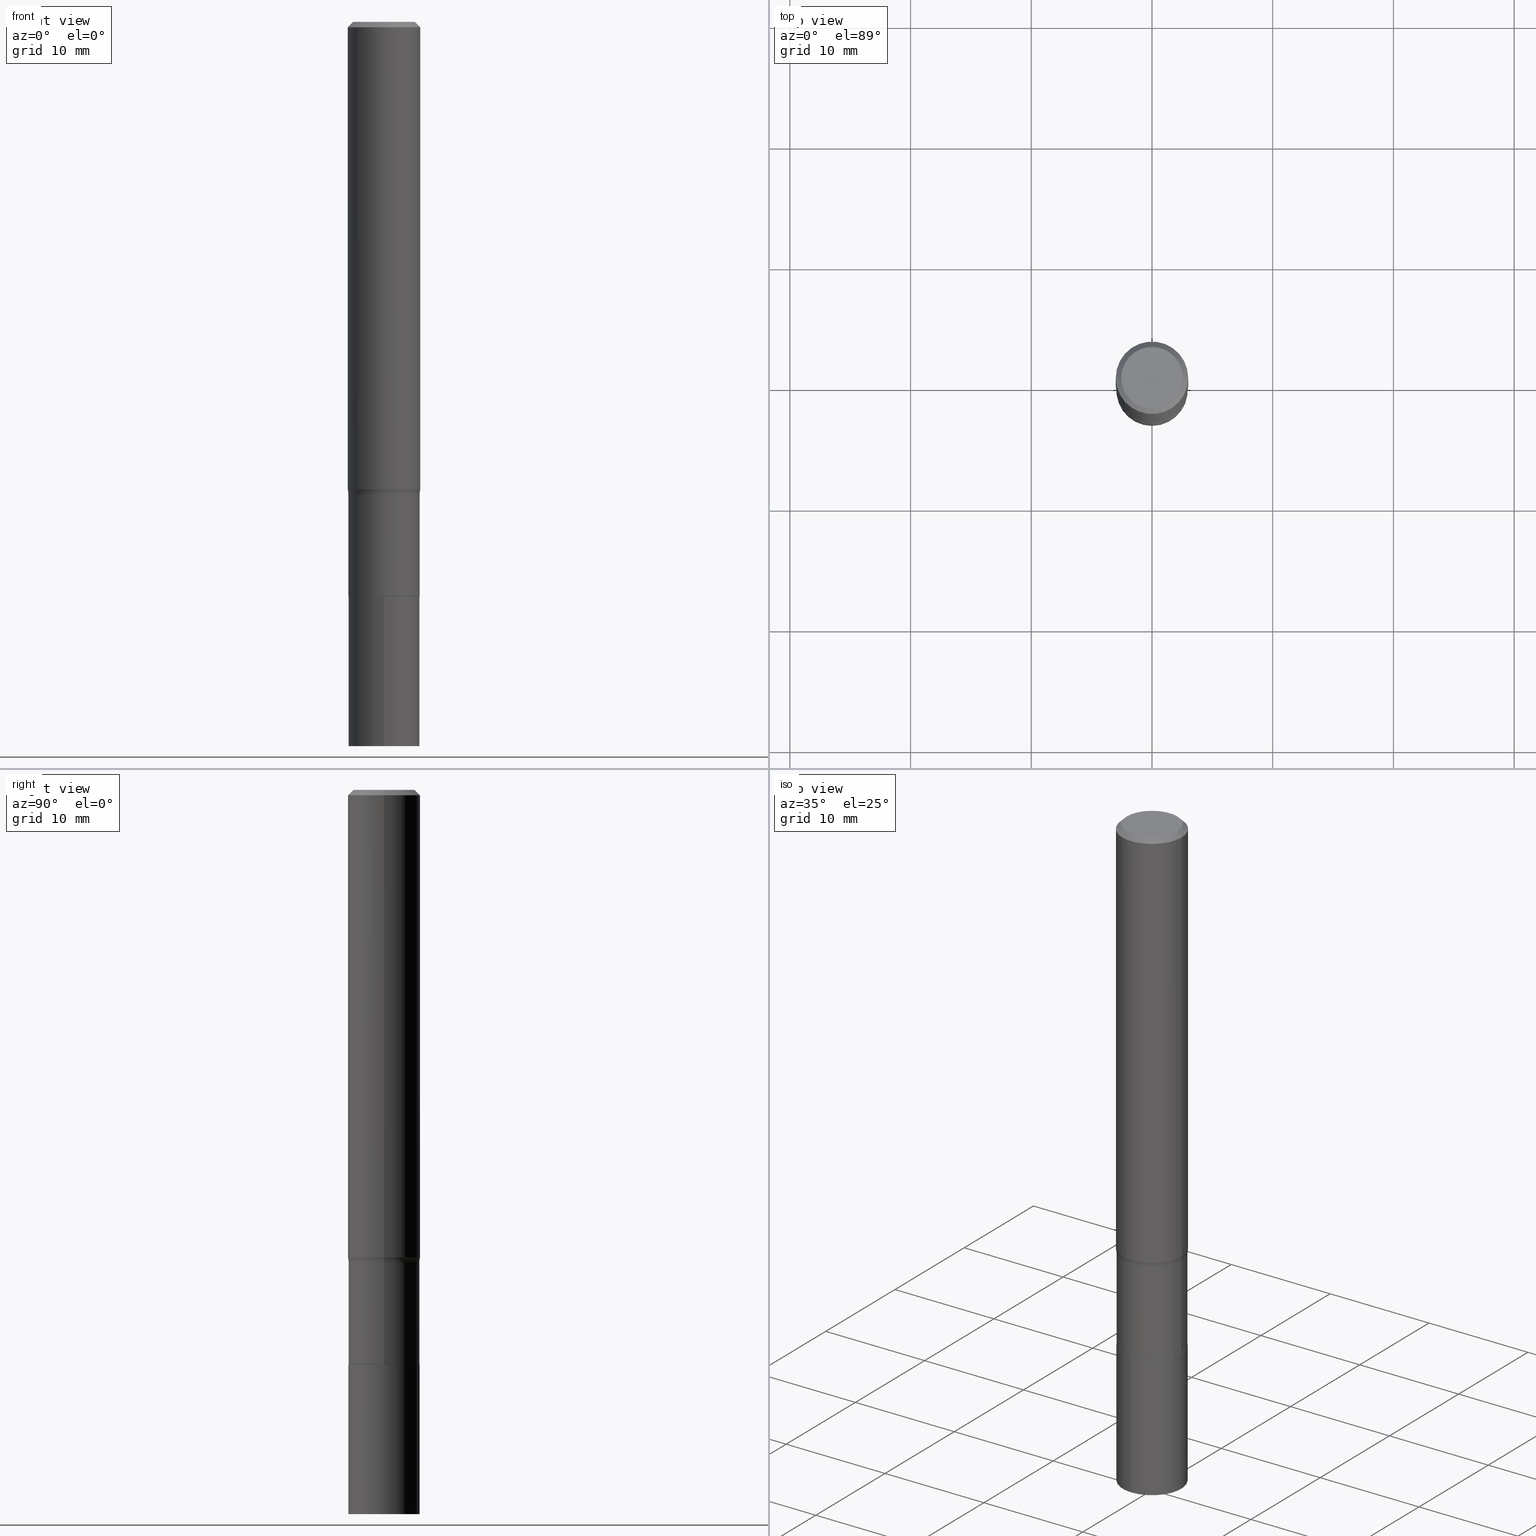
[diagram: canonical four-view strip — front | top / right | iso, engineering-drawing reading convention]
A machine part, canonical four-view strip (front | top / right | iso — engineering-drawing reading convention). The complete STEP part file that produces these views, byte-faithful:
ISO-10303-21;
HEADER;
FILE_DESCRIPTION (( 'STEP AP203' ),
    '1' );
FILE_NAME ('67104.STEP',
    '2024-04-19T15:53:28',
    ( '' ),
    ( '' ),
    'SwSTEP 2.0',
    'SolidWorks 2023',
    '' );
FILE_SCHEMA (( 'CONFIG_CONTROL_DESIGN' ));
ENDSEC;

DATA;
#1 = DIRECTION ( 'NONE',  ( -2.445468806185136877E-29, 3.491481338843145188E-15, 1.000000000000000000 ) ) ;
#2 = CARTESIAN_POINT ( 'NONE',  ( 0.1180999999999999966, -8.720764054544246253E-16, -0.01771500000000011954 ) ) ;
#3 = DIRECTION ( 'NONE',  ( -2.445468806185136597E-29, 3.491481338843145583E-15, 1.000000000000000000 ) ) ;
#4 = LOCAL_TIME ( 11, 53, 28.00000000000000000, #277 ) ;
#5 = AXIS2_PLACEMENT_3D ( 'NONE', #256, #399, #326 ) ;
#6 = CARTESIAN_POINT ( 'NONE',  ( -8.110711150132139920E-16, -0.1161500000000065397, -1.874200000000000088 ) ) ;
#7 = PLANE ( 'NONE',  #48 ) ;
#8 = CC_DESIGN_DATE_AND_TIME_ASSIGNMENT ( #12, #376, ( #252 ) ) ;
#9 = LOCAL_TIME ( 11, 53, 28.00000000000000000, #347 ) ;
#10 = AXIS2_PLACEMENT_3D ( 'NONE', #339, #189, #403 ) ;
#11 = ORIENTED_EDGE ( 'NONE', *, *, #56, .T. ) ;
#12 = DATE_AND_TIME ( #235, #430 ) ;
#13 = ORIENTED_EDGE ( 'NONE', *, *, #203, .T. ) ;
#14 = DIRECTION ( 'NONE',  ( 0.000000000000000000, 0.000000000000000000, 1.000000000000000000 ) ) ;
#15 = ORIENTED_EDGE ( 'NONE', *, *, #375, .F. ) ;
#16 =( GEOMETRIC_REPRESENTATION_CONTEXT ( 3 ) GLOBAL_UNCERTAINTY_ASSIGNED_CONTEXT ( ( #38 ) ) GLOBAL_UNIT_ASSIGNED_CONTEXT ( ( #122, #300, #80 ) ) REPRESENTATION_CONTEXT ( 'NONE', 'WORKASPACE' ) );
#17 = CIRCLE ( 'NONE', #358, 0.1161499999999999894 ) ;
#18 = EDGE_CURVE ( 'NONE', #453, #280, #26, .T. ) ;
#19 = AXIS2_PLACEMENT_3D ( 'NONE', #405, #118, #363 ) ;
#20 = PERSON_AND_ORGANIZATION ( #338, #124 ) ;
#21 = ORIENTED_EDGE ( 'NONE', *, *, #226, .F. ) ;
#22 = FACE_OUTER_BOUND ( 'NONE', #133, .T. ) ;
#23 = ORIENTED_EDGE ( 'NONE', *, *, #423, .F. ) ;
#24 = CARTESIAN_POINT ( 'NONE',  ( 4.583297636552184206E-29, -6.543734325259825090E-15, -1.874200000000000532 ) ) ;
#25 = ORIENTED_EDGE ( 'NONE', *, *, #259, .T. ) ;
#26 = CIRCLE ( 'NONE', #218, 0.1161499999999999894 ) ;
#27 = DIRECTION ( 'NONE',  ( 7.105427357601001859E-15, 1.000000000000000000, -3.491481338843145583E-15 ) ) ;
#28 = VERTEX_POINT ( 'NONE', #288 ) ;
#29 = CC_DESIGN_PERSON_AND_ORGANIZATION_ASSIGNMENT ( #162, #234, ( #114 ) ) ;
#30 = DIRECTION ( 'NONE',  ( 1.000000000000000000, -6.982962677686259611E-15, 0.000000000000000000 ) ) ;
#31 = DATE_AND_TIME ( #459, #435 ) ;
#32 = CARTESIAN_POINT ( 'NONE',  ( 8.252953875854079607E-16, 0.1161499999999917598, -2.362200000000000966 ) ) ;
#33 = DIRECTION ( 'NONE',  ( -2.445468806185136597E-29, 3.491481338843145583E-15, 1.000000000000000000 ) ) ;
#34 = ADVANCED_FACE ( 'NONE', ( #68 ), #371, .T. ) ;
#35 = DIRECTION ( 'NONE',  ( -2.445468806185136597E-29, 3.491481338843145583E-15, 1.000000000000000000 ) ) ;
#36 = AXIS2_PLACEMENT_3D ( 'NONE', #357, #27, #428 ) ;
#37 = ORIENTED_EDGE ( 'NONE', *, *, #264, .F. ) ;
#38 = UNCERTAINTY_MEASURE_WITH_UNIT (LENGTH_MEASURE( 1.000000000000000082E-05 ), #122, 'distance_accuracy_value', 'NONE');
#39 = DIRECTION ( 'NONE',  ( 1.000000000000000000, -6.982962677686266711E-15, 4.875668750515089058E-29 ) ) ;
#40 = CARTESIAN_POINT ( 'NONE',  ( -0.1003849999999999465, 7.319105043583382745E-16, -3.278471329827902485E-17 ) ) ;
#41 = CARTESIAN_POINT ( 'NONE',  ( 0.1180999999999999966, -8.865394841523548556E-16, -0.01771500000000011954 ) ) ;
#42 = CIRCLE ( 'NONE', #5, 0.1161500000000000032 ) ;
#43 = EDGE_CURVE ( 'NONE', #421, #149, #199, .T. ) ;
#44 = ADVANCED_FACE ( 'NONE', ( #391 ), #108, .F. ) ;
#45 = DATE_AND_TIME ( #126, #4 ) ;
#46 = VECTOR ( 'NONE', #1, 39.37007874015748143 ) ;
#47 = ORIENTED_EDGE ( 'NONE', *, *, #164, .F. ) ;
#48 = AXIS2_PLACEMENT_3D ( 'NONE', #384, #413, #209 ) ;
#49 = DIRECTION ( 'NONE',  ( -2.445468806185136877E-29, 3.491481338843145188E-15, 1.000000000000000000 ) ) ;
#50 = EDGE_LOOP ( 'NONE', ( #242, #414, #317, #135 ) ) ;
#51 = MANIFOLD_SOLID_BREP ( 'Body-Move/Copy2[1]', #225 ) ;
#52 = VERTEX_POINT ( 'NONE', #63 ) ;
#53 = EDGE_CURVE ( 'NONE', #139, #360, #365, .T. ) ;
#54 = DATE_AND_TIME ( #171, #216 ) ;
#55 = EDGE_LOOP ( 'NONE', ( #21, #13, #411, #195 ) ) ;
#56 = EDGE_CURVE ( 'NONE', #447, #353, #42, .T. ) ;
#57 = AXIS2_PLACEMENT_3D ( 'NONE', #148, #257, #214 ) ;
#58 = FACE_OUTER_BOUND ( 'NONE', #385, .T. ) ;
#59 = VERTEX_POINT ( 'NONE', #177 ) ;
#60 = CARTESIAN_POINT ( 'NONE',  ( 0.000000000000000000, 0.000000000000000000, 0.000000000000000000 ) ) ;
#61 = ADVANCED_FACE ( 'NONE', ( #293 ), #437, .T. ) ;
#62 = DIRECTION ( 'NONE',  ( -2.477847829518707564E-29, 3.445112734529912251E-15, 1.000000000000000000 ) ) ;
#63 = CARTESIAN_POINT ( 'NONE',  ( 0.1156500000000000028, -7.351313958934242618E-15, -1.874200000000000532 ) ) ;
#64 = CC_DESIGN_APPROVAL ( #176, ( #191 ) ) ;
#65 = APPROVAL_ROLE ( '' ) ;
#66 = VECTOR ( 'NONE', #322, 39.37007874015748143 ) ;
#67 = DIRECTION ( 'NONE',  ( 1.000000000000000000, -6.982962677686266711E-15, 4.875668750515089058E-29 ) ) ;
#68 = FACE_OUTER_BOUND ( 'NONE', #129, .T. ) ;
#69 = DIRECTION ( 'NONE',  ( -6.982962677686265922E-15, -1.000000000000000000, 2.351999994545211393E-15 ) ) ;
#70 = CARTESIAN_POINT ( 'NONE',  ( 5.792487377357314585E-29, -8.224949339710423941E-15, -2.362200000000000966 ) ) ;
#71 = LINE ( 'NONE', #354, #320 ) ;
#72 = DIRECTION ( 'NONE',  ( -2.445468806185136597E-29, 3.491481338843145583E-15, 1.000000000000000000 ) ) ;
#73 = CARTESIAN_POINT ( 'NONE',  ( 4.583297636552184206E-29, -6.543734325259825090E-15, -1.874200000000000532 ) ) ;
#74 = DIRECTION ( 'NONE',  ( 2.445468806185136597E-29, -3.491481338843145583E-15, -1.000000000000000000 ) ) ;
#75 = ADVANCED_FACE ( 'NONE', ( #101 ), #340, .T. ) ;
#76 = CARTESIAN_POINT ( 'NONE',  ( 3.771891086659955739E-29, -5.385260817031669568E-15, -1.542400000000000437 ) ) ;
#77 = LENGTH_MEASURE_WITH_UNIT ( LENGTH_MEASURE( 0.02539999999999999897 ), #158 );
#78 = APPROVAL ( #166, 'UNSPECIFIED' ) ;
#79 = DIRECTION ( 'NONE',  ( -0.7071067811865467956, 2.468850131082249172E-15, -0.7071067811865482389 ) ) ;
#80 =( NAMED_UNIT ( * ) SI_UNIT ( $, .STERADIAN. ) SOLID_ANGLE_UNIT ( ) );
#81 = TOROIDAL_SURFACE ( 'NONE', #352, 0.1961499999999999633, 0.08000000000000000167 ) ;
#82 = MECHANICAL_CONTEXT ( 'NONE', #418, 'mechanical' ) ;
#83 = ADVANCED_FACE ( 'NONE', ( #269 ), #298, .T. ) ;
#84 = APPLICATION_PROTOCOL_DEFINITION ( 'international standard', 'config_control_design', 1994, #197 ) ;
#85 = ORIENTED_EDGE ( 'NONE', *, *, #43, .F. ) ;
#86 = PERSON_AND_ORGANIZATION ( #338, #124 ) ;
#87 = AXIS2_PLACEMENT_3D ( 'NONE', #73, #3, #439 ) ;
#88 = LINE ( 'NONE', #205, #98 ) ;
#89 = ORIENTED_EDGE ( 'NONE', *, *, #292, .T. ) ;
#90 = CIRCLE ( 'NONE', #57, 0.1161499999999999894 ) ;
#91 = CARTESIAN_POINT ( 'NONE',  ( 0.000000000000000000, 0.000000000000000000, 0.000000000000000000 ) ) ;
#92 = EDGE_CURVE ( 'NONE', #59, #186, #433, .T. ) ;
#93 = ORIENTED_EDGE ( 'NONE', *, *, #188, .F. ) ;
#94 = PERSON_AND_ORGANIZATION ( #338, #124 ) ;
#95 = CYLINDRICAL_SURFACE ( 'NONE', #107, 0.1181000000000001077 ) ;
#96 = VERTEX_POINT ( 'NONE', #440 ) ;
#97 = ORIENTED_EDGE ( 'NONE', *, *, #368, .F. ) ;
#98 = VECTOR ( 'NONE', #238, 39.37007874015748143 ) ;
#99 = SHAPE_DEFINITION_REPRESENTATION ( #327, #324 ) ;
#100 = CARTESIAN_POINT ( 'NONE',  ( 4.583297636552184206E-29, -6.543734325259825090E-15, -1.874200000000000532 ) ) ;
#101 = FACE_OUTER_BOUND ( 'NONE', #217, .T. ) ;
#102 = FACE_OUTER_BOUND ( 'NONE', #145, .T. ) ;
#103 = ORIENTED_EDGE ( 'NONE', *, *, #379, .F. ) ;
#104 = DIRECTION ( 'NONE',  ( -2.445468806185136597E-29, 3.491481338843145583E-15, 1.000000000000000000 ) ) ;
#105 = CARTESIAN_POINT ( 'NONE',  ( 3.771891086659955739E-29, -5.385260817031669568E-15, -1.542400000000000437 ) ) ;
#106 = AXIS2_PLACEMENT_3D ( 'NONE', #91, #14, #344 ) ;
#107 = AXIS2_PLACEMENT_3D ( 'NONE', #244, #443, #325 ) ;
#108 = TOROIDAL_SURFACE ( 'NONE', #309, 0.1961499999999999633, 0.08000000000000000167 ) ;
#109 = FACE_OUTER_BOUND ( 'NONE', #355, .T. ) ;
#110 = EDGE_CURVE ( 'NONE', #377, #422, #120, .T. ) ;
#111 = DIRECTION ( 'NONE',  ( 0.7071067811865467956, -7.319954787623254468E-15, -0.7071067811865482389 ) ) ;
#112 = PLANE ( 'NONE',  #232 ) ;
#113 = CARTESIAN_POINT ( 'NONE',  ( 0.000000000000000000, 0.000000000000000000, 0.000000000000000000 ) ) ;
#114 = PRODUCT ( '67104', '67104', '', ( #82 ) ) ;
#115 = CYLINDRICAL_SURFACE ( 'NONE', #178, 0.1161499999999999755 ) ;
#116 = ADVANCED_FACE ( 'NONE', ( #337 ), #7, .F. ) ;
#117 = APPROVAL_PERSON_ORGANIZATION ( #20, #78, #271 ) ;
#118 = DIRECTION ( 'NONE',  ( -2.445468806185136597E-29, 3.491481338843145583E-15, 1.000000000000000000 ) ) ;
#119 = CIRCLE ( 'NONE', #157, 0.1003849999999999465 ) ;
#120 = LINE ( 'NONE', #333, #268 ) ;
#121 = EDGE_CURVE ( 'NONE', #28, #149, #88, .T. ) ;
#122 =( CONVERSION_BASED_UNIT ( 'INCH', #77 ) LENGTH_UNIT ( ) NAMED_UNIT ( #304 ) );
#123 = DIRECTION ( 'NONE',  ( 1.000000000000000000, -6.982962677686267499E-15, 0.000000000000000000 ) ) ;
#124 = ORGANIZATION ( 'UNSPECIFIED', 'UNSPECIFIED', '' ) ;
#125 = AXIS2_PLACEMENT_3D ( 'NONE', #60, #291, #175 ) ;
#126 = CALENDAR_DATE ( 2024, 19, 4 ) ;
#127 = APPROVAL_STATUS ( 'not_yet_approved' ) ;
#128 = ORIENTED_EDGE ( 'NONE', *, *, #18, .T. ) ;
#129 = EDGE_LOOP ( 'NONE', ( #97, #184, #306, #251 ) ) ;
#130 = APPLICATION_PROTOCOL_DEFINITION ( 'international standard', 'config_control_design', 1994, #418 ) ;
#131 = ORIENTED_EDGE ( 'NONE', *, *, #121, .F. ) ;
#132 = DIRECTION ( 'NONE',  ( 1.000000000000000000, -6.982962677686269866E-15, 0.000000000000000000 ) ) ;
#133 = EDGE_LOOP ( 'NONE', ( #165, #312, #345, #401 ) ) ;
#134 = DIRECTION ( 'NONE',  ( -6.982962677686265922E-15, -1.000000000000000000, 2.351999994545211787E-15 ) ) ;
#135 = ORIENTED_EDGE ( 'NONE', *, *, #265, .F. ) ;
#136 = CIRCLE ( 'NONE', #273, 0.1181000000000001909 ) ;
#137 = CLOSED_SHELL ( 'NONE', ( #346, #34, #61, #44, #284, #407, #278, #159, #83, #181, #231, #152 ) ) ;
#138 = CARTESIAN_POINT ( 'NONE',  ( 4.583297636552184206E-29, -6.543734325259825090E-15, -1.874200000000000532 ) ) ;
#139 = VERTEX_POINT ( 'NONE', #449 ) ;
#140 = CC_DESIGN_PERSON_AND_ORGANIZATION_ASSIGNMENT ( #86, #237, ( #364 ) ) ;
#141 = CARTESIAN_POINT ( 'NONE',  ( -0.1161499999999999755, 8.252953875853561917E-16, -5.713343107331072131E-30 ) ) ;
#142 = DIRECTION ( 'NONE',  ( -6.982962677686265922E-15, -1.000000000000000000, 2.351999994545211787E-15 ) ) ;
#143 = EDGE_CURVE ( 'NONE', #59, #422, #310, .T. ) ;
#144 = DIRECTION ( 'NONE',  ( 1.000000000000000000, -6.982962677686269866E-15, 0.000000000000000000 ) ) ;
#145 = EDGE_LOOP ( 'NONE', ( #93, #25, #382, #276 ) ) ;
#146 = AXIS2_PLACEMENT_3D ( 'NONE', #227, #329, #230 ) ;
#147 = APPROVAL_DATE_TIME ( #31, #176 ) ;
#148 = CARTESIAN_POINT ( 'NONE',  ( 4.582074902149091965E-29, -6.541988584590403587E-15, -1.873700000000000587 ) ) ;
#149 = VERTEX_POINT ( 'NONE', #348 ) ;
#150 = CARTESIAN_POINT ( 'NONE',  ( 3.771891086659955739E-29, -5.385260817031669568E-15, -1.542400000000000437 ) ) ;
#151 = CARTESIAN_POINT ( 'NONE',  ( 4.332147990156999371E-31, -6.185159191760674092E-17, -0.01771500000000011954 ) ) ;
#152 = ADVANCED_FACE ( 'NONE', ( #279 ), #416, .T. ) ;
#153 = DESIGN_CONTEXT ( 'detailed design', #197, 'design' ) ;
#154 = DIRECTION ( 'NONE',  ( -2.445468806185136597E-29, 3.491481338843145583E-15, 1.000000000000000000 ) ) ;
#155 = DIRECTION ( 'NONE',  ( 1.000000000000000000, -6.982962677686269077E-15, 0.000000000000000000 ) ) ;
#156 = LINE ( 'NONE', #6, #456 ) ;
#157 = AXIS2_PLACEMENT_3D ( 'NONE', #253, #104, #67 ) ;
#158 =( LENGTH_UNIT ( ) NAMED_UNIT ( * ) SI_UNIT ( $, .METRE. ) );
#159 = ADVANCED_FACE ( 'NONE', ( #58 ), #95, .T. ) ;
#160 = DIRECTION ( 'NONE',  ( -2.445468806185136597E-29, 3.491481338843145583E-15, 1.000000000000000000 ) ) ;
#161 = APPROVAL_PERSON_ORGANIZATION ( #241, #387, #412 ) ;
#162 = PERSON_AND_ORGANIZATION ( #338, #124 ) ;
#163 = EDGE_LOOP ( 'NONE', ( #89, #11 ) ) ;
#164 = EDGE_CURVE ( 'NONE', #28, #52, #275, .T. ) ;
#165 = ORIENTED_EDGE ( 'NONE', *, *, #43, .T. ) ;
#166 = APPROVAL_STATUS ( 'not_yet_approved' ) ;
#167 = ORIENTED_EDGE ( 'NONE', *, *, #375, .T. ) ;
#168 = AXIS2_PLACEMENT_3D ( 'NONE', #434, #33, #468 ) ;
#169 = CC_DESIGN_APPROVAL ( #387, ( #364 ) ) ;
#170 = CC_DESIGN_PERSON_AND_ORGANIZATION_ASSIGNMENT ( #94, #381, ( #364 ) ) ;
#171 = CALENDAR_DATE ( 2024, 19, 4 ) ;
#172 = ORIENTED_EDGE ( 'NONE', *, *, #264, .T. ) ;
#173 = CYLINDRICAL_SURFACE ( 'NONE', #125, 0.1161499999999999755 ) ;
#174 = ORIENTED_EDGE ( 'NONE', *, *, #203, .F. ) ;
#175 = DIRECTION ( 'NONE',  ( 1.000000000000000000, -6.982962677686266711E-15, 4.876176775795935232E-29 ) ) ;
#176 = APPROVAL ( #451, 'UNSPECIFIED' ) ;
#177 = CARTESIAN_POINT ( 'NONE',  ( -0.1181000000000001632, -4.484814954552903905E-15, -1.524844445323487729 ) ) ;
#178 = AXIS2_PLACEMENT_3D ( 'NONE', #294, #154, #406 ) ;
#179 = DIRECTION ( 'NONE',  ( 6.982962677686265922E-15, 1.000000000000000000, -3.445112734529911856E-15 ) ) ;
#180 = DIRECTION ( 'NONE',  ( -1.000000000000000000, 6.982962677686266711E-15, 0.000000000000000000 ) ) ;
#181 = ADVANCED_FACE ( 'NONE', ( #315 ), #436, .F. ) ;
#182 = DIRECTION ( 'NONE',  ( 2.477847829518707564E-29, -3.445112734529911856E-15, -1.000000000000000000 ) ) ;
#183 = CARTESIAN_POINT ( 'NONE',  ( 4.583297636552184206E-29, -6.543734325259825090E-15, -1.874200000000000532 ) ) ;
#184 = ORIENTED_EDGE ( 'NONE', *, *, #53, .T. ) ;
#185 = CARTESIAN_POINT ( 'NONE',  ( 8.017399369065212404E-46, -1.144672146802464325E-31, -3.278471329827401435E-17 ) ) ;
#186 = VERTEX_POINT ( 'NONE', #359 ) ;
#187 = DIRECTION ( 'NONE',  ( 1.000000000000000000, -6.982962677686269866E-15, 0.000000000000000000 ) ) ;
#188 = EDGE_CURVE ( 'NONE', #280, #447, #249, .T. ) ;
#189 = DIRECTION ( 'NONE',  ( -2.477847829518707564E-29, 3.445112734529912251E-15, 1.000000000000000000 ) ) ;
#190 = CARTESIAN_POINT ( 'NONE',  ( -8.110711150132139920E-16, -0.1161500000000065397, -1.874200000000000088 ) ) ;
#191 = SECURITY_CLASSIFICATION ( '', '', #383 ) ;
#192 = FACE_OUTER_BOUND ( 'NONE', #330, .T. ) ;
#193 = AXIS2_PLACEMENT_3D ( 'NONE', #420, #202, #132 ) ;
#194 = DIRECTION ( 'NONE',  ( -2.445468806185136597E-29, 3.491481338843145583E-15, 1.000000000000000000 ) ) ;
#195 = ORIENTED_EDGE ( 'NONE', *, *, #458, .F. ) ;
#196 = ADVANCED_FACE ( 'NONE', ( #318 ), #424, .F. ) ;
#197 = APPLICATION_CONTEXT ( 'configuration controlled 3d designs of mechanical parts and assemblies' ) ;
#198 = CARTESIAN_POINT ( 'NONE',  ( 8.252953875854138772E-16, 0.1161499999999934529, -1.874200000000000754 ) ) ;
#199 = CIRCLE ( 'NONE', #168, 0.1161499999999999894 ) ;
#200 = EDGE_LOOP ( 'NONE', ( #427, #349, #425, #254 ) ) ;
#201 = DATE_AND_TIME ( #305, #9 ) ;
#202 = DIRECTION ( 'NONE',  ( -2.445468806185136597E-29, 3.491481338843145583E-15, 1.000000000000000000 ) ) ;
#203 = EDGE_CURVE ( 'NONE', #149, #421, #90, .T. ) ;
#204 = ORIENTED_EDGE ( 'NONE', *, *, #368, .T. ) ;
#205 = CARTESIAN_POINT ( 'NONE',  ( -0.1156500000000000028, -5.721991651353269008E-15, -1.874200000000000532 ) ) ;
#206 = ORIENTED_EDGE ( 'NONE', *, *, #373, .T. ) ;
#207 = PERSON_AND_ORGANIZATION_ROLE ( 'classification_officer' ) ;
#208 = CIRCLE ( 'NONE', #19, 0.1180999999999999966 ) ;
#209 = DIRECTION ( 'NONE',  ( -6.982962677686265922E-15, -1.000000000000000000, 3.445112734529911856E-15 ) ) ;
#210 = ORIENTED_EDGE ( 'NONE', *, *, #452, .F. ) ;
#211 = AXIS2_PLACEMENT_3D ( 'NONE', #183, #287, #144 ) ;
#212 = MANIFOLD_SOLID_BREP ( 'Body-Move/Copy2[2]', #137 ) ;
#213 = ORIENTED_EDGE ( 'NONE', *, *, #164, .T. ) ;
#214 = DIRECTION ( 'NONE',  ( 1.000000000000000000, -6.982962677686266711E-15, 0.000000000000000000 ) ) ;
#215 = DIRECTION ( 'NONE',  ( -6.982962677686265922E-15, -1.000000000000000000, 2.351999994545211393E-15 ) ) ;
#216 = LOCAL_TIME ( 11, 53, 28.00000000000000000, #386 ) ;
#217 = EDGE_LOOP ( 'NONE', ( #128, #388, #445, #210 ) ) ;
#218 = AXIS2_PLACEMENT_3D ( 'NONE', #70, #258, #142 ) ;
#219 = CARTESIAN_POINT ( 'NONE',  ( -0.1161499999999999755, -5.138329313225679991E-15, -1.542400000000000437 ) ) ;
#220 = CARTESIAN_POINT ( 'NONE',  ( 4.332147990156999371E-31, -6.185159191760674092E-17, -0.01771500000000011954 ) ) ;
#221 = LINE ( 'NONE', #141, #66 ) ;
#222 = DIRECTION ( 'NONE',  ( -2.445468806185136597E-29, 3.491481338843145583E-15, 1.000000000000000000 ) ) ;
#223 = CARTESIAN_POINT ( 'NONE',  ( 0.1181000000000001077, -8.246878922347488542E-16, 5.758764772215005345E-30 ) ) ;
#224 = DIRECTION ( 'NONE',  ( 1.000000000000000000, -6.982962677686266711E-15, 4.876176775795935793E-29 ) ) ;
#225 = CLOSED_SHELL ( 'NONE', ( #75, #116, #246, #196 ) ) ;
#226 = EDGE_CURVE ( 'NONE', #149, #323, #221, .T. ) ;
#227 = CARTESIAN_POINT ( 'NONE',  ( 4.332147990156999371E-31, -6.185159191760674092E-17, -0.01771500000000011954 ) ) ;
#228 = DIRECTION ( 'NONE',  ( -1.000000000000000000, 6.982962677686266711E-15, 0.000000000000000000 ) ) ;
#229 = DIRECTION ( 'NONE',  ( -2.445468806185136597E-29, 3.491481338843145583E-15, 1.000000000000000000 ) ) ;
#230 = DIRECTION ( 'NONE',  ( 1.000000000000000000, -6.982962677686266711E-15, 0.000000000000000000 ) ) ;
#231 = ADVANCED_FACE ( 'NONE', ( #109 ), #112, .F. ) ;
#232 = AXIS2_PLACEMENT_3D ( 'NONE', #100, #321, #463 ) ;
#233 = CARTESIAN_POINT ( 'NONE',  ( 0.1161499999999999755, -8.110711150132597459E-16, 5.663679325086977697E-30 ) ) ;
#234 = PERSON_AND_ORGANIZATION_ROLE ( 'design_owner' ) ;
#235 = CALENDAR_DATE ( 2024, 19, 4 ) ;
#236 = ORIENTED_EDGE ( 'NONE', *, *, #143, .F. ) ;
#237 = PERSON_AND_ORGANIZATION_ROLE ( 'creator' ) ;
#238 = DIRECTION ( 'NONE',  ( -0.7071067811866078578, 7.493145998870571886E-15, 0.7071067811864871766 ) ) ;
#239 = VECTOR ( 'NONE', #286, 39.37007874015748143 ) ;
#240 = EDGE_LOOP ( 'NONE', ( #303, #461, #247, #15 ) ) ;
#241 = PERSON_AND_ORGANIZATION ( #338, #124 ) ;
#242 = ORIENTED_EDGE ( 'NONE', *, *, #92, .F. ) ;
#243 = PERSON_AND_ORGANIZATION ( #338, #124 ) ;
#244 = CARTESIAN_POINT ( 'NONE',  ( 0.000000000000000000, 0.000000000000000000, 0.000000000000000000 ) ) ;
#245 = EDGE_LOOP ( 'NONE', ( #390, #23, #417, #206 ) ) ;
#246 = ADVANCED_FACE ( 'NONE', ( #102 ), #398, .T. ) ;
#247 = ORIENTED_EDGE ( 'NONE', *, *, #396, .F. ) ;
#248 = AXIS2_PLACEMENT_3D ( 'NONE', #370, #194, #155 ) ;
#249 = LINE ( 'NONE', #466, #239 ) ;
#250 = CARTESIAN_POINT ( 'NONE',  ( 4.008699684532606202E-46, -5.723360734012321624E-32, -1.639235664913700718E-17 ) ) ;
#251 = ORIENTED_EDGE ( 'NONE', *, *, #110, .F. ) ;
#252 = PRODUCT_DEFINITION ( 'UNKNOWN', '', #364, #153 ) ;
#253 = CARTESIAN_POINT ( 'NONE',  ( 8.017399369065212404E-46, -1.144672146802464325E-31, -3.278471329827401435E-17 ) ) ;
#254 = ORIENTED_EDGE ( 'NONE', *, *, #431, .T. ) ;
#255 = FACE_OUTER_BOUND ( 'NONE', #245, .T. ) ;
#256 = CARTESIAN_POINT ( 'NONE',  ( 4.583297636552184206E-29, -6.543734325259825090E-15, -1.874200000000000532 ) ) ;
#257 = DIRECTION ( 'NONE',  ( -2.445468806185136597E-29, 3.491481338843145583E-15, 1.000000000000000000 ) ) ;
#258 = DIRECTION ( 'NONE',  ( -2.477847829518707564E-29, 3.445112734529912251E-15, 1.000000000000000000 ) ) ;
#259 = EDGE_CURVE ( 'NONE', #280, #453, #17, .T. ) ;
#260 = CARTESIAN_POINT ( 'NONE',  ( 0.1161499999999999894, -7.353059699603663332E-15, -1.873700000000000587 ) ) ;
#261 = AXIS2_PLACEMENT_3D ( 'NONE', #185, #35, #39 ) ;
#262 = AXIS2_PLACEMENT_3D ( 'NONE', #457, #395, #30 ) ;
#263 = CARTESIAN_POINT ( 'NONE',  ( -8.110711150132018632E-16, -0.1161500000000082189, -2.362200000000000522 ) ) ;
#264 = EDGE_CURVE ( 'NONE', #52, #421, #71, .T. ) ;
#265 = EDGE_CURVE ( 'NONE', #186, #96, #289, .T. ) ;
#266 = DIRECTION ( 'NONE',  ( 1.000000000000000000, -6.982962677686267499E-15, 0.000000000000000000 ) ) ;
#267 = APPROVAL_PERSON_ORGANIZATION ( #313, #176, #65 ) ;
#268 = VECTOR ( 'NONE', #79, 39.37007874015748143 ) ;
#269 = FACE_OUTER_BOUND ( 'NONE', #200, .T. ) ;
#270 = APPROVAL_DATE_TIME ( #45, #78 ) ;
#271 = APPROVAL_ROLE ( '' ) ;
#272 = ORIENTED_EDGE ( 'NONE', *, *, #431, .F. ) ;
#273 = AXIS2_PLACEMENT_3D ( 'NONE', #438, #160, #410 ) ;
#274 = CARTESIAN_POINT ( 'NONE',  ( -0.1181000000000001077, 8.391509709326790846E-16, -5.809262341591049389E-30 ) ) ;
#275 = CIRCLE ( 'NONE', #211, 0.1156500000000000028 ) ;
#276 = ORIENTED_EDGE ( 'NONE', *, *, #56, .F. ) ;
#277 = COORDINATED_UNIVERSAL_TIME_OFFSET ( 5, 0, .BEHIND. ) ;
#278 = ADVANCED_FACE ( 'NONE', ( #255 ), #81, .F. ) ;
#279 = FACE_OUTER_BOUND ( 'NONE', #314, .T. ) ;
#280 = VERTEX_POINT ( 'NONE', #32 ) ;
#281 = EDGE_LOOP ( 'NONE', ( #319, #450 ) ) ;
#282 = DIRECTION ( 'NONE',  ( -1.000000000000000000, 6.982962677686265922E-15, -4.876176775795935793E-29 ) ) ;
#283 = AXIS2_PLACEMENT_3D ( 'NONE', #138, #285, #215 ) ;
#284 = ADVANCED_FACE ( 'NONE', ( #22 ), #173, .T. ) ;
#285 = DIRECTION ( 'NONE',  ( -2.477847829518707564E-29, 3.445112734529912251E-15, 1.000000000000000000 ) ) ;
#286 = DIRECTION ( 'NONE',  ( -2.477847829518707564E-29, 3.445112734529911856E-15, 1.000000000000000000 ) ) ;
#287 = DIRECTION ( 'NONE',  ( -2.445468806185136597E-29, 3.491481338843145583E-15, 1.000000000000000000 ) ) ;
#288 = CARTESIAN_POINT ( 'NONE',  ( -0.1156500000000000028, -5.719342424179157807E-15, -1.874200000000000532 ) ) ;
#289 = CIRCLE ( 'NONE', #262, 0.08000000000000000167 ) ;
#290 = CIRCLE ( 'NONE', #146, 0.1180999999999999966 ) ;
#291 = DIRECTION ( 'NONE',  ( -2.445468806185136597E-29, 3.491481338843145583E-15, 1.000000000000000000 ) ) ;
#292 = EDGE_CURVE ( 'NONE', #353, #447, #409, .T. ) ;
#293 = FACE_OUTER_BOUND ( 'NONE', #240, .T. ) ;
#294 = CARTESIAN_POINT ( 'NONE',  ( 0.000000000000000000, 0.000000000000000000, 0.000000000000000000 ) ) ;
#295 = DIRECTION ( 'NONE',  ( -2.477847829518707564E-29, 3.445112734529911856E-15, 1.000000000000000000 ) ) ;
#296 = CC_DESIGN_DATE_AND_TIME_ASSIGNMENT ( #54, #351, ( #191 ) ) ;
#297 = EDGE_CURVE ( 'NONE', #59, #323, #389, .T. ) ;
#298 = CONICAL_SURFACE ( 'NONE', #341, 0.1180999999999999966, 0.7853981633974472798 ) ;
#299 = CARTESIAN_POINT ( 'NONE',  ( -0.1180999999999999966, -1.853757787768916348E-15, -0.01771500000000011954 ) ) ;
#300 =( NAMED_UNIT ( * ) PLANE_ANGLE_UNIT ( ) SI_UNIT ( $, .RADIAN. ) );
#301 = FACE_OUTER_BOUND ( 'NONE', #55, .T. ) ;
#302 = CONICAL_SURFACE ( 'NONE', #366, 0.1156500000000000028, 0.7853981633975336552 ) ;
#303 = ORIENTED_EDGE ( 'NONE', *, *, #423, .T. ) ;
#304 = DIMENSIONAL_EXPONENTS ( 1.000000000000000000, 0.000000000000000000, 0.000000000000000000, 0.000000000000000000, 0.000000000000000000, 0.000000000000000000, 0.000000000000000000 ) ;
#305 = CALENDAR_DATE ( 2024, 19, 4 ) ;
#306 = ORIENTED_EDGE ( 'NONE', *, *, #396, .T. ) ;
#307 = VECTOR ( 'NONE', #369, 39.37007874015748143 ) ;
#308 = PERSON_AND_ORGANIZATION_ROLE ( 'creator' ) ;
#309 = AXIS2_PLACEMENT_3D ( 'NONE', #105, #222, #362 ) ;
#310 = LINE ( 'NONE', #274, #467 ) ;
#311 = AXIS2_PLACEMENT_3D ( 'NONE', #432, #62, #69 ) ;
#312 = ORIENTED_EDGE ( 'NONE', *, *, #226, .T. ) ;
#313 = PERSON_AND_ORGANIZATION ( #338, #124 ) ;
#314 = EDGE_LOOP ( 'NONE', ( #131, #213, #172, #174 ) ) ;
#315 = FACE_OUTER_BOUND ( 'NONE', #397, .T. ) ;
#316 = EDGE_CURVE ( 'NONE', #377, #139, #119, .T. ) ;
#317 = ORIENTED_EDGE ( 'NONE', *, *, #458, .T. ) ;
#318 = FACE_OUTER_BOUND ( 'NONE', #163, .T. ) ;
#319 = ORIENTED_EDGE ( 'NONE', *, *, #18, .F. ) ;
#320 = VECTOR ( 'NONE', #460, 39.37007874015748143 ) ;
#321 = DIRECTION ( 'NONE',  ( -2.438088387897960049E-29, 3.491481338843145188E-15, 1.000000000000000000 ) ) ;
#322 = DIRECTION ( 'NONE',  ( -2.445468806185136877E-29, 3.491481338843145188E-15, 1.000000000000000000 ) ) ;
#323 = VERTEX_POINT ( 'NONE', #219 ) ;
#324 = ADVANCED_BREP_SHAPE_REPRESENTATION ( '67104', ( #51, #212, #106 ), #16 ) ;
#325 = DIRECTION ( 'NONE',  ( 1.000000000000000000, -6.982962677686266711E-15, 4.876176775795935793E-29 ) ) ;
#326 = DIRECTION ( 'NONE',  ( -6.982962677686265922E-15, -1.000000000000000000, 2.351999994545211393E-15 ) ) ;
#327 = PRODUCT_DEFINITION_SHAPE ( 'NONE', 'NONE',  #252 ) ;
#328 = AXIS2_PLACEMENT_3D ( 'NONE', #220, #429, #180 ) ;
#329 = DIRECTION ( 'NONE',  ( -2.445468806185136597E-29, 3.491481338843145583E-15, 1.000000000000000000 ) ) ;
#330 = EDGE_LOOP ( 'NONE', ( #455, #393, #85, #37 ) ) ;
#331 = DIRECTION ( 'NONE',  ( -2.445468806185136597E-29, 3.491481338843145583E-15, 1.000000000000000000 ) ) ;
#332 = LINE ( 'NONE', #233, #307 ) ;
#333 = CARTESIAN_POINT ( 'NONE',  ( -0.1180999999999999966, 7.628363003171412752E-16, -0.01771500000000011954 ) ) ;
#334 = CC_DESIGN_SECURITY_CLASSIFICATION ( #191, ( #364 ) ) ;
#335 = AXIS2_PLACEMENT_3D ( 'NONE', #250, #454, #282 ) ;
#336 = LINE ( 'NONE', #223, #46 ) ;
#337 = FACE_OUTER_BOUND ( 'NONE', #281, .T. ) ;
#338 = PERSON ( 'UNSPECIFIED', 'UNSPECIFIED', 'UNSPECIFIED', ('UNSPECIFIED'), ('UNSPECIFIED'), ('UNSPECIFIED') ) ;
#339 = CARTESIAN_POINT ( 'NONE',  ( 4.583297636552184206E-29, -6.543734325259825090E-15, -1.874200000000000532 ) ) ;
#340 = CYLINDRICAL_SURFACE ( 'NONE', #10, 0.1161500000000000032 ) ;
#341 = AXIS2_PLACEMENT_3D ( 'NONE', #151, #74, #228 ) ;
#342 = CC_DESIGN_PERSON_AND_ORGANIZATION_ASSIGNMENT ( #243, #207, ( #191 ) ) ;
#343 = ORIENTED_EDGE ( 'NONE', *, *, #316, .T. ) ;
#344 = DIRECTION ( 'NONE',  ( 1.000000000000000000, 0.000000000000000000, 0.000000000000000000 ) ) ;
#345 = ORIENTED_EDGE ( 'NONE', *, *, #373, .F. ) ;
#346 = ADVANCED_FACE ( 'NONE', ( #192 ), #302, .T. ) ;
#347 = COORDINATED_UNIVERSAL_TIME_OFFSET ( 5, 0, .BEHIND. ) ;
#348 = CARTESIAN_POINT ( 'NONE',  ( -0.1161500000000000032, -5.138329313225679991E-15, -1.873700000000000587 ) ) ;
#349 = ORIENTED_EDGE ( 'NONE', *, *, #316, .F. ) ;
#350 = CC_DESIGN_PERSON_AND_ORGANIZATION_ASSIGNMENT ( #374, #308, ( #252 ) ) ;
#351 = DATE_TIME_ROLE ( 'classification_date' ) ;
#352 = AXIS2_PLACEMENT_3D ( 'NONE', #426, #356, #361 ) ;
#353 = VERTEX_POINT ( 'NONE', #190 ) ;
#354 = CARTESIAN_POINT ( 'NONE',  ( 0.1156500000000000028, -7.351313958934242618E-15, -1.874200000000000532 ) ) ;
#355 = EDGE_LOOP ( 'NONE', ( #103, #47 ) ) ;
#356 = DIRECTION ( 'NONE',  ( -2.445468806185136597E-29, 3.491481338843145583E-15, 1.000000000000000000 ) ) ;
#357 = CARTESIAN_POINT ( 'NONE',  ( -0.1961499999999999633, -3.991531240838232723E-15, -1.542400000000000437 ) ) ;
#358 = AXIS2_PLACEMENT_3D ( 'NONE', #400, #392, #134 ) ;
#359 = CARTESIAN_POINT ( 'NONE',  ( 0.1181000000000001632, -6.148653817720333520E-15, -1.524844445323487729 ) ) ;
#360 = VERTEX_POINT ( 'NONE', #41 ) ;
#361 = DIRECTION ( 'NONE',  ( 1.000000000000000000, -6.982962677686266711E-15, 4.883557194083113462E-29 ) ) ;
#362 = DIRECTION ( 'NONE',  ( 1.000000000000000000, -6.982962677686266711E-15, 4.883557194083113462E-29 ) ) ;
#363 = DIRECTION ( 'NONE',  ( 1.000000000000000000, -6.982962677686266711E-15, 0.000000000000000000 ) ) ;
#364 = PRODUCT_DEFINITION_FORMATION_WITH_SPECIFIED_SOURCE ( 'ANY', '', #114, .NOT_KNOWN. ) ;
#365 = LINE ( 'NONE', #2, #441 ) ;
#366 = AXIS2_PLACEMENT_3D ( 'NONE', #402, #442, #187 ) ;
#367 = PRODUCT_RELATED_PRODUCT_CATEGORY ( 'detail', '', ( #114 ) ) ;
#368 = EDGE_CURVE ( 'NONE', #139, #377, #380, .T. ) ;
#369 = DIRECTION ( 'NONE',  ( -2.445468806185136877E-29, 3.491481338843145188E-15, 1.000000000000000000 ) ) ;
#370 = CARTESIAN_POINT ( 'NONE',  ( 3.728959525323266298E-29, -5.323965925485584469E-15, -1.524844445323487729 ) ) ;
#371 = CONICAL_SURFACE ( 'NONE', #328, 0.1180999999999999966, 0.7853981633974472798 ) ;
#372 = CC_DESIGN_APPROVAL ( #78, ( #252 ) ) ;
#373 = EDGE_CURVE ( 'NONE', #96, #323, #415, .T. ) ;
#374 = PERSON_AND_ORGANIZATION ( #338, #124 ) ;
#375 = EDGE_CURVE ( 'NONE', #186, #360, #336, .T. ) ;
#376 = DATE_TIME_ROLE ( 'creation_date' ) ;
#377 = VERTEX_POINT ( 'NONE', #40 ) ;
#378 = AXIS2_PLACEMENT_3D ( 'NONE', #150, #331, #266 ) ;
#379 = EDGE_CURVE ( 'NONE', #52, #28, #408, .T. ) ;
#380 = CIRCLE ( 'NONE', #261, 0.1003849999999999465 ) ;
#381 = PERSON_AND_ORGANIZATION_ROLE ( 'design_supplier' ) ;
#382 = ORIENTED_EDGE ( 'NONE', *, *, #452, .T. ) ;
#383 = SECURITY_CLASSIFICATION_LEVEL ( 'unclassified' ) ;
#384 = CARTESIAN_POINT ( 'NONE',  ( -1.982634215307182284E-29, -1.935936599284468093E-14, -2.362200000000000522 ) ) ;
#385 = EDGE_LOOP ( 'NONE', ( #236, #464, #167, #272 ) ) ;
#386 = COORDINATED_UNIVERSAL_TIME_OFFSET ( 5, 0, .BEHIND. ) ;
#387 = APPROVAL ( #127, 'UNSPECIFIED' ) ;
#388 = ORIENTED_EDGE ( 'NONE', *, *, #188, .T. ) ;
#389 = CIRCLE ( 'NONE', #36, 0.08000000000000000167 ) ;
#390 = ORIENTED_EDGE ( 'NONE', *, *, #297, .F. ) ;
#391 = FACE_OUTER_BOUND ( 'NONE', #50, .T. ) ;
#392 = DIRECTION ( 'NONE',  ( -2.477847829518707564E-29, 3.445112734529912251E-15, 1.000000000000000000 ) ) ;
#393 = ORIENTED_EDGE ( 'NONE', *, *, #121, .T. ) ;
#394 = CIRCLE ( 'NONE', #465, 0.1161499999999999755 ) ;
#395 = DIRECTION ( 'NONE',  ( -6.982962677686266711E-15, -1.000000000000000000, 3.491481338843145583E-15 ) ) ;
#396 = EDGE_CURVE ( 'NONE', #360, #422, #208, .T. ) ;
#397 = EDGE_LOOP ( 'NONE', ( #343, #204 ) ) ;
#398 = CYLINDRICAL_SURFACE ( 'NONE', #311, 0.1161500000000000032 ) ;
#399 = DIRECTION ( 'NONE',  ( -2.477847829518707564E-29, 3.445112734529912251E-15, 1.000000000000000000 ) ) ;
#400 = CARTESIAN_POINT ( 'NONE',  ( 5.792487377357314585E-29, -8.224949339710423941E-15, -2.362200000000000966 ) ) ;
#401 = ORIENTED_EDGE ( 'NONE', *, *, #446, .F. ) ;
#402 = CARTESIAN_POINT ( 'NONE',  ( 4.583297636552184206E-29, -6.543734325259825090E-15, -1.874200000000000532 ) ) ;
#403 = DIRECTION ( 'NONE',  ( -6.982962677686265922E-15, -1.000000000000000000, 2.351999994545211393E-15 ) ) ;
#404 = AXIS2_PLACEMENT_3D ( 'NONE', #24, #182, #179 ) ;
#405 = CARTESIAN_POINT ( 'NONE',  ( 4.332147990156999371E-31, -6.185159191760674092E-17, -0.01771500000000011954 ) ) ;
#406 = DIRECTION ( 'NONE',  ( 1.000000000000000000, -6.982962677686266711E-15, 4.876176775795935232E-29 ) ) ;
#407 = ADVANCED_FACE ( 'NONE', ( #301 ), #115, .T. ) ;
#408 = CIRCLE ( 'NONE', #87, 0.1156500000000000028 ) ;
#409 = CIRCLE ( 'NONE', #283, 0.1161500000000000032 ) ;
#410 = DIRECTION ( 'NONE',  ( 1.000000000000000000, -6.982962677686269077E-15, 0.000000000000000000 ) ) ;
#411 = ORIENTED_EDGE ( 'NONE', *, *, #446, .T. ) ;
#412 = APPROVAL_ROLE ( '' ) ;
#413 = DIRECTION ( 'NONE',  ( -2.477847829518707564E-29, 3.445112734529911856E-15, 1.000000000000000000 ) ) ;
#414 = ORIENTED_EDGE ( 'NONE', *, *, #297, .T. ) ;
#415 = CIRCLE ( 'NONE', #378, 0.1161499999999999755 ) ;
#416 = CONICAL_SURFACE ( 'NONE', #193, 0.1156500000000000028, 0.7853981633975336552 ) ;
#417 = ORIENTED_EDGE ( 'NONE', *, *, #265, .T. ) ;
#418 = APPLICATION_CONTEXT ( 'configuration controlled 3d designs of mechanical parts and assemblies' ) ;
#419 = APPROVAL_DATE_TIME ( #201, #387 ) ;
#420 = CARTESIAN_POINT ( 'NONE',  ( 4.583297636552184206E-29, -6.543734325259825090E-15, -1.874200000000000532 ) ) ;
#421 = VERTEX_POINT ( 'NONE', #260 ) ;
#422 = VERTEX_POINT ( 'NONE', #299 ) ;
#423 = EDGE_CURVE ( 'NONE', #186, #59, #136, .T. ) ;
#424 = PLANE ( 'NONE',  #404 ) ;
#425 = ORIENTED_EDGE ( 'NONE', *, *, #110, .T. ) ;
#426 = CARTESIAN_POINT ( 'NONE',  ( 3.771891086659955739E-29, -5.385260817031669568E-15, -1.542400000000000437 ) ) ;
#427 = ORIENTED_EDGE ( 'NONE', *, *, #53, .F. ) ;
#428 = DIRECTION ( 'NONE',  ( -1.000000000000000000, 7.105427357601005014E-15, 0.000000000000000000 ) ) ;
#429 = DIRECTION ( 'NONE',  ( 2.445468806185136597E-29, -3.491481338843145583E-15, -1.000000000000000000 ) ) ;
#430 = LOCAL_TIME ( 11, 53, 28.00000000000000000, #444 ) ;
#431 = EDGE_CURVE ( 'NONE', #422, #360, #290, .T. ) ;
#432 = CARTESIAN_POINT ( 'NONE',  ( 4.583297636552184206E-29, -6.543734325259825090E-15, -1.874200000000000532 ) ) ;
#433 = CIRCLE ( 'NONE', #248, 0.1181000000000001909 ) ;
#434 = CARTESIAN_POINT ( 'NONE',  ( 4.582074902149091965E-29, -6.541988584590403587E-15, -1.873700000000000587 ) ) ;
#435 = LOCAL_TIME ( 11, 53, 28.00000000000000000, #462 ) ;
#436 = PLANE ( 'NONE',  #335 ) ;
#437 = CYLINDRICAL_SURFACE ( 'NONE', #448, 0.1181000000000001077 ) ;
#438 = CARTESIAN_POINT ( 'NONE',  ( 3.728959525323266298E-29, -5.323965925485584469E-15, -1.524844445323487729 ) ) ;
#439 = DIRECTION ( 'NONE',  ( 1.000000000000000000, -6.982962677686269866E-15, 0.000000000000000000 ) ) ;
#440 = CARTESIAN_POINT ( 'NONE',  ( 0.1161499999999999755, -6.196331932044929314E-15, -1.542400000000000437 ) ) ;
#441 = VECTOR ( 'NONE', #111, 39.37007874015748143 ) ;
#442 = DIRECTION ( 'NONE',  ( -2.445468806185136597E-29, 3.491481338843145583E-15, 1.000000000000000000 ) ) ;
#443 = DIRECTION ( 'NONE',  ( -2.445468806185136597E-29, 3.491481338843145583E-15, 1.000000000000000000 ) ) ;
#444 = COORDINATED_UNIVERSAL_TIME_OFFSET ( 5, 0, .BEHIND. ) ;
#445 = ORIENTED_EDGE ( 'NONE', *, *, #292, .F. ) ;
#446 = EDGE_CURVE ( 'NONE', #421, #96, #332, .T. ) ;
#447 = VERTEX_POINT ( 'NONE', #198 ) ;
#448 = AXIS2_PLACEMENT_3D ( 'NONE', #113, #72, #224 ) ;
#449 = CARTESIAN_POINT ( 'NONE',  ( 0.1003849999999999465, -7.803837484803597373E-16, -3.278471329826883745E-17 ) ) ;
#450 = ORIENTED_EDGE ( 'NONE', *, *, #259, .F. ) ;
#451 = APPROVAL_STATUS ( 'not_yet_approved' ) ;
#452 = EDGE_CURVE ( 'NONE', #453, #353, #156, .T. ) ;
#453 = VERTEX_POINT ( 'NONE', #263 ) ;
#454 = DIRECTION ( 'NONE',  ( 2.438088387897960049E-29, -3.491481338843145188E-15, -1.000000000000000000 ) ) ;
#455 = ORIENTED_EDGE ( 'NONE', *, *, #379, .T. ) ;
#456 = VECTOR ( 'NONE', #295, 39.37007874015748143 ) ;
#457 = CARTESIAN_POINT ( 'NONE',  ( 0.1961499999999999633, -6.754968946259830177E-15, -1.542400000000000437 ) ) ;
#458 = EDGE_CURVE ( 'NONE', #323, #96, #394, .T. ) ;
#459 = CALENDAR_DATE ( 2024, 19, 4 ) ;
#460 = DIRECTION ( 'NONE',  ( 0.7071067811866078578, -2.468850131082888544E-15, 0.7071067811864871766 ) ) ;
#461 = ORIENTED_EDGE ( 'NONE', *, *, #143, .T. ) ;
#462 = COORDINATED_UNIVERSAL_TIME_OFFSET ( 5, 0, .BEHIND. ) ;
#463 = DIRECTION ( 'NONE',  ( 1.000000000000000000, -6.982962677686265922E-15, 4.876176775795935793E-29 ) ) ;
#464 = ORIENTED_EDGE ( 'NONE', *, *, #92, .T. ) ;
#465 = AXIS2_PLACEMENT_3D ( 'NONE', #76, #229, #123 ) ;
#466 = CARTESIAN_POINT ( 'NONE',  ( 8.252953875854021429E-16, 0.1161499999999934668, -1.874200000000000754 ) ) ;
#467 = VECTOR ( 'NONE', #49, 39.37007874015748143 ) ;
#468 = DIRECTION ( 'NONE',  ( 1.000000000000000000, -6.982962677686266711E-15, 0.000000000000000000 ) ) ;
ENDSEC;
END-ISO-10303-21;
